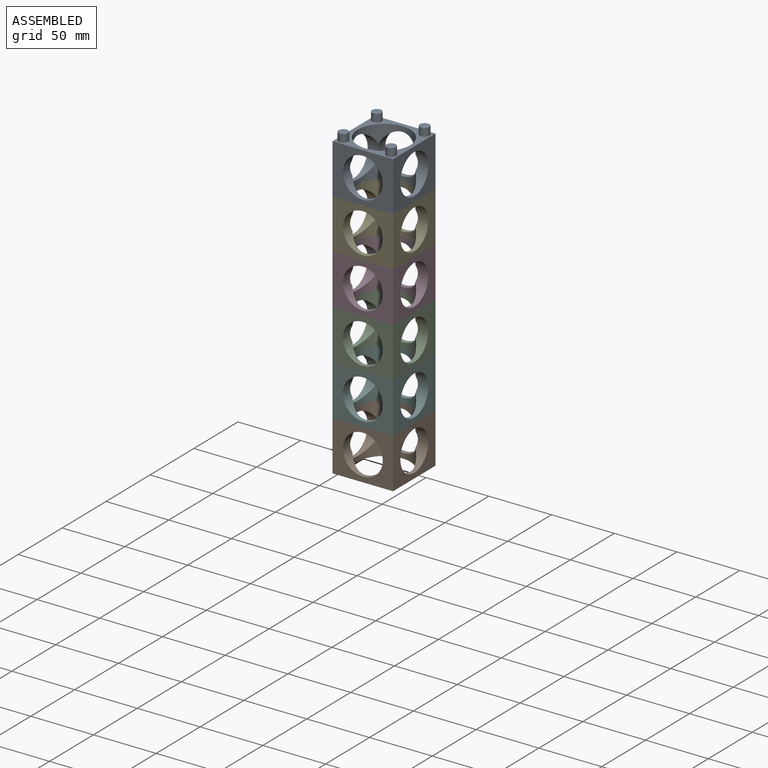
[diagram: assembled view]
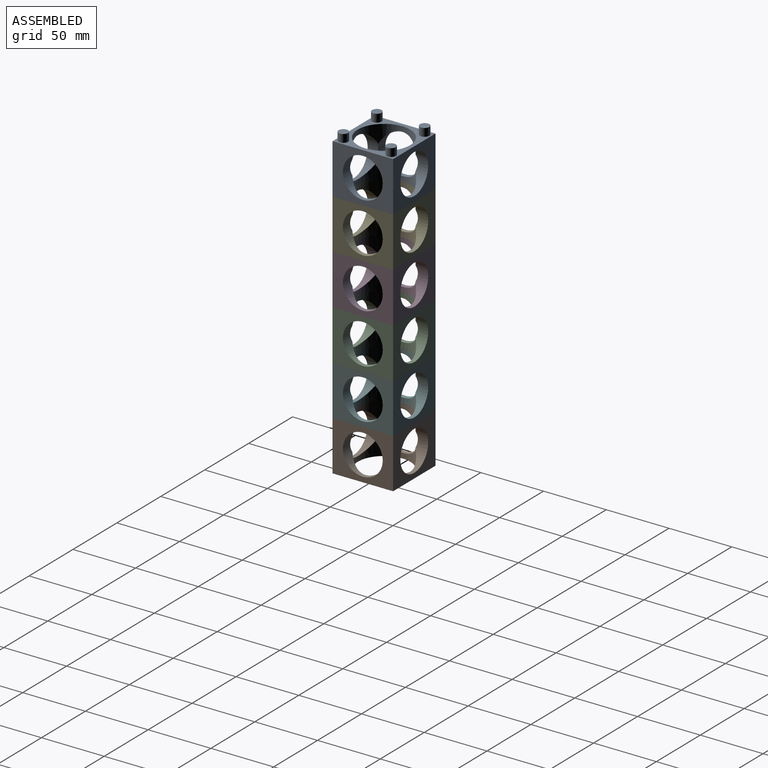
[diagram: assembled view, second angle]
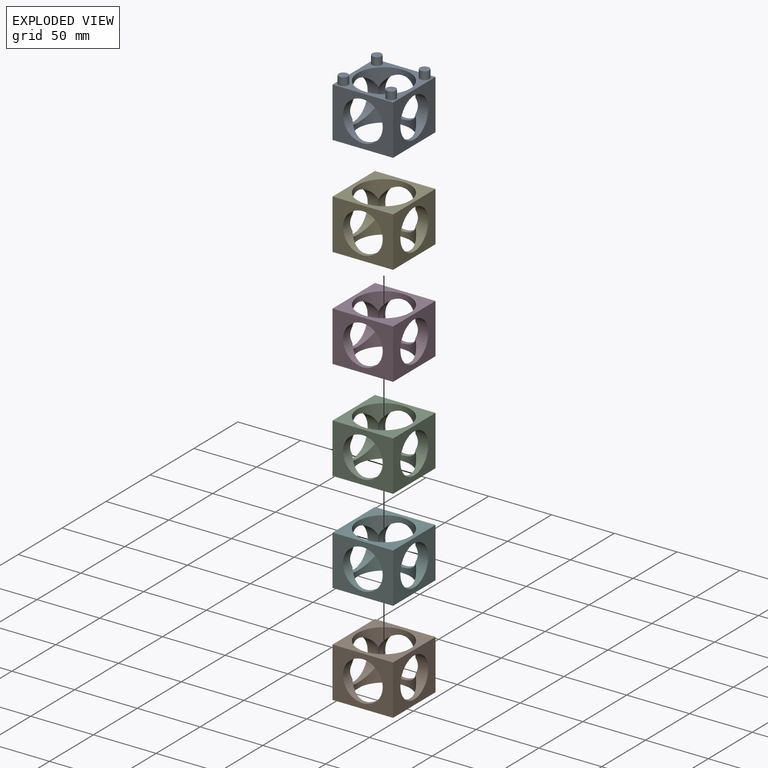
[diagram: exploded view]
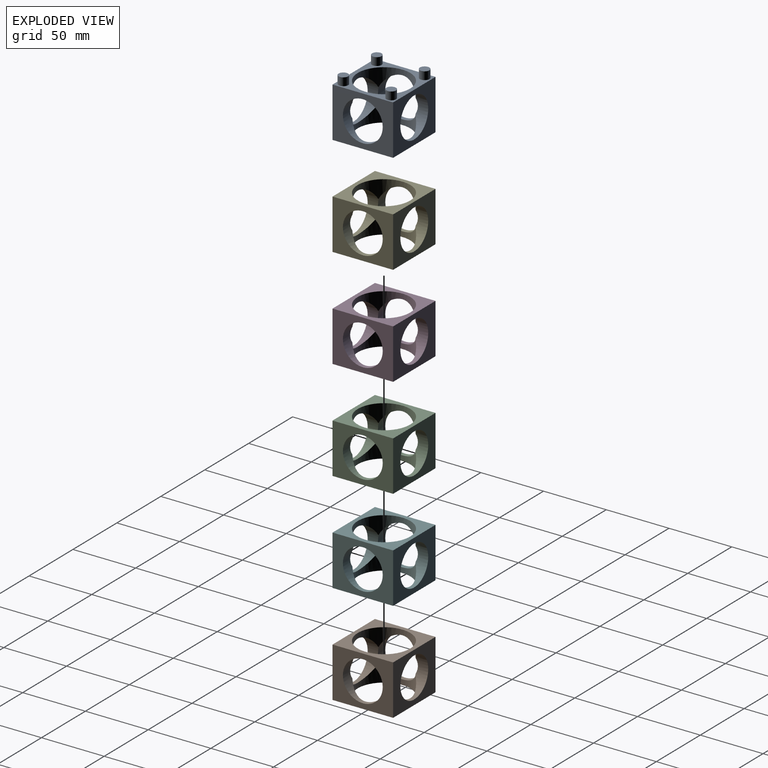
[diagram: exploded view, second angle]
ASSEMBLY  parts=6 mates=5
PART A: 20 faces, bbox 48.3x48.3x46.2 mm
  f0: cylinder r=20.96mm len=41.91mm, axis (0,0,-1), area 939.3mm2, adj f1,f2,f7,f10,f11
  f1: cylinder r=15.88mm len=31.75mm, axis (-1,0,0), area 626.7mm2, adj f0,f4,f9,f10,f11
  f2: cylinder r=15.88mm len=31.75mm, axis (-1,0,0), area 626.6mm2, adj f0,f6,f9,f10,f11
  f3: plane 48.26x39.88mm, normal (0,-1,0), area 1132.8mm2, adj f4,f6,f7,f8,f10
  f4: plane 48.26x39.88mm, normal (1,0,0), area 1132.8mm2, adj f1,f3,f5,f7,f8
  f5: plane 48.26x39.88mm, normal (0,1,0), area 1132.8mm2, adj f4,f6,f7,f8,f11
  f6: plane 48.26x39.88mm, normal (-1,0,0), area 1132.8mm2, adj f2,f3,f5,f7,f8
  f7: plane 48.26x48.26mm, normal (0,0,1), area 767.1mm2, adj f0,f3,f4,f5,f6,f12,f14,f16
  f8: plane 48.26x48.26mm, normal (0,0,-1), area 949.5mm2, adj f3,f4,f5,f6,f9
  f9: cylinder r=20.96mm len=41.91mm, axis (0,0,-1), area 939.3mm2, adj f1,f2,f8,f10,f11
  f10: cylinder r=15.88mm len=31.75mm, axis (0,-1,0), area 626.7mm2, adj f0,f1,f2,f3,f9
  f11: cylinder r=15.88mm len=31.75mm, axis (0,-1,0), area 626.6mm2, adj f0,f1,f2,f5,f9
  f12: cylinder r=3.81mm len=7.62mm, axis (0,0,-1), area 152mm2, adj f7,f13
  f13: plane 7.62x7.62mm, normal (0,0,1), area 45.6mm2, adj f12
  f14: cylinder r=3.81mm len=7.62mm, axis (0,0,-1), area 152mm2, adj f7,f15
  f15: plane 7.62x7.62mm, normal (0,0,1), area 45.6mm2, adj f14
  f16: cylinder r=3.81mm len=7.62mm, axis (0,0,-1), area 152mm2, adj f7,f17
  f17: plane 7.62x7.62mm, normal (0,0,1), area 45.6mm2, adj f16
  f18: cylinder r=3.81mm len=7.62mm, axis (0,0,-1), area 152mm2, adj f7,f19
  f19: plane 7.62x7.62mm, normal (0,0,1), area 45.6mm2, adj f18
PART B: 12 faces, bbox 48.3x48.3x39.9 mm
  f0: cylinder r=20.96mm len=41.91mm, axis (0,0,-1), area 939.3mm2, adj f1,f2,f7,f10,f11
  f1: cylinder r=15.88mm len=31.75mm, axis (-1,0,0), area 626.7mm2, adj f0,f4,f9,f10,f11
  f2: cylinder r=15.88mm len=31.75mm, axis (-1,0,0), area 626.6mm2, adj f0,f6,f9,f10,f11
  f3: plane 48.26x39.88mm, normal (0,-1,0), area 1132.8mm2, adj f4,f6,f7,f8,f10
  f4: plane 48.26x39.88mm, normal (1,0,0), area 1132.8mm2, adj f1,f3,f5,f7,f8
  f5: plane 48.26x39.88mm, normal (0,1,0), area 1132.8mm2, adj f4,f6,f7,f8,f11
  f6: plane 48.26x39.88mm, normal (-1,0,0), area 1132.8mm2, adj f2,f3,f5,f7,f8
  f7: plane 48.26x48.26mm, normal (0,0,1), area 949.5mm2, adj f0,f3,f4,f5,f6
  f8: plane 48.26x48.26mm, normal (0,0,-1), area 949.5mm2, adj f3,f4,f5,f6,f9
  f9: cylinder r=20.96mm len=41.91mm, axis (0,0,-1), area 939.3mm2, adj f1,f2,f8,f10,f11
  f10: cylinder r=15.88mm len=31.75mm, axis (0,-1,0), area 626.7mm2, adj f0,f1,f2,f3,f9
  f11: cylinder r=15.88mm len=31.75mm, axis (0,-1,0), area 626.6mm2, adj f0,f1,f2,f5,f9
PART C: same geometry as B
PART D: same geometry as B
PART E: same geometry as B
PART F: same geometry as B
PLACE A t=(-24.16,1.06,206.57)mm
PLACE B t=(-24.16,1.06,7.18)mm
PLACE C t=(-24.16,1.06,86.94)mm
PLACE D t=(-24.16,1.06,126.82)mm
PLACE E t=(-24.16,1.06,166.7)mm
PLACE F t=(-24.16,1.06,47.06)mm
MATE fastened D.f8 <-> C.f7  axis (0,0,-1) through (-0.03,25.19,126.82)mm
MATE fastened C.f8 <-> F.f7  axis (0,0,-1) through (-0.03,-23.07,86.94)mm
MATE fastened A.f8 <-> E.f7  axis (0,0,-1) through (-0.03,25.19,206.57)mm
MATE fastened E.f8 <-> D.f7  axis (0,0,-1) through (-0.03,25.19,166.7)mm
MATE fastened F.f8 <-> B.f7  axis (0,0,-1) through (-0.03,-23.07,47.06)mm
